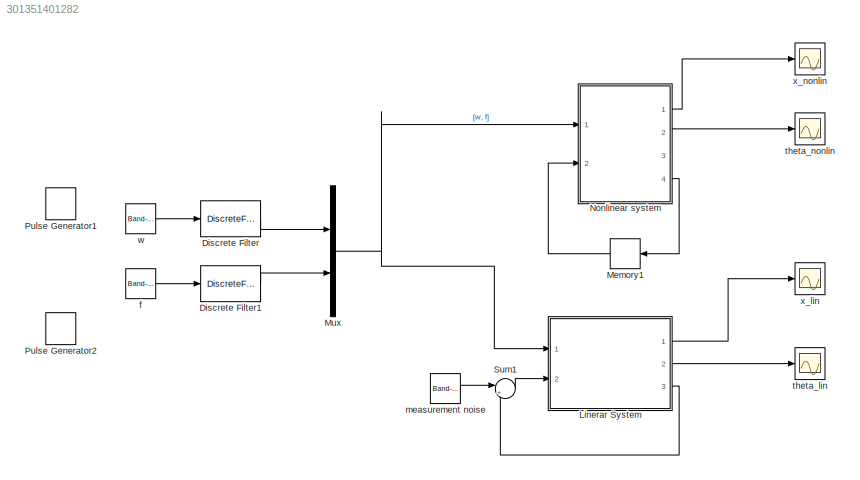
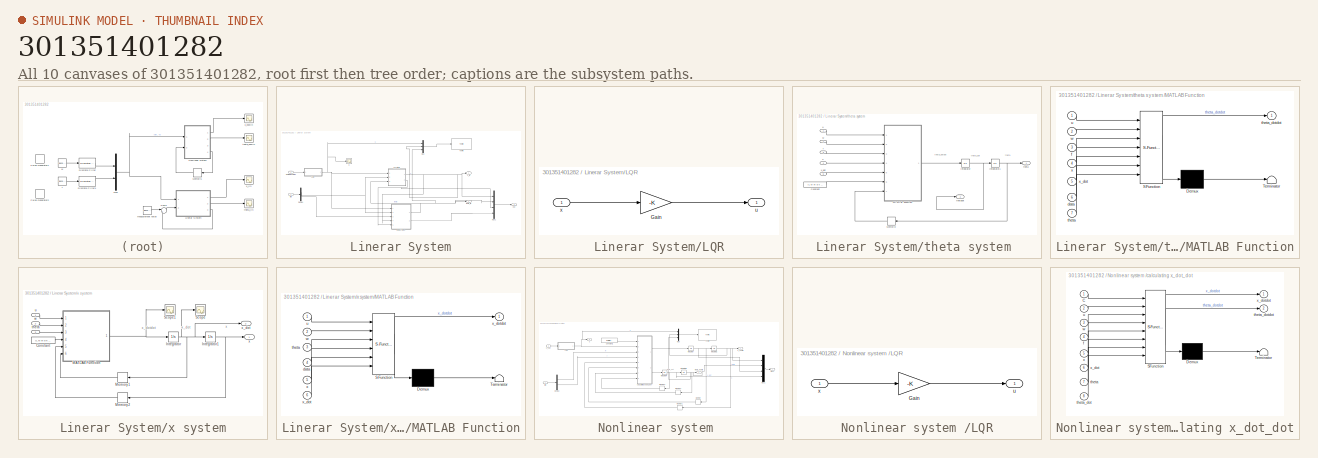
[diagram: thumbnail index - all 10 canvases of the model, root first then tree order]
MODEL slx_301351401282
KIND model
CONFIG AbsTol = auto
CONFIG EnableMultiTasking = off
CONFIG FixedStep = auto
CONFIG MaxStep = auto
CONFIG MinStep = auto
CONFIG RelTol = 1e-3
CONFIG SampleTimeConstraint = Unconstrained
CONFIG Solver = ode45
CONFIG SolverName = ode45
CONFIG StartTime = 0.0
CONFIG StopTime = 30
BLOCK [DiscreteFilter] Discrete Filter
  Denominator = [1 0.8]
  InputPortMap = u0
  Numerator = [0.64]
  Ports = [1, 1]
  SampleTime = 0.001
BLOCK [DiscreteFilter] Discrete Filter1
  Denominator = [1 0.8]
  InputPortMap = u0
  Numerator = [0.64]
  Ports = [1, 1]
  SampleTime = 0.001
BLOCK [SubSystem] Linerar System
  Ports = [2, 3]
  RequestExecContextInheritance = off
  Variant = off
BLOCK [Demux] Linerar System/Demux
  DisplayOption = bar
  Outputs = 2
  Ports = [1, 2]
BLOCK [Inport] Linerar System/Estimated states
  IconDisplay = Port number
  Port = 2
BLOCK [SubSystem] Linerar System/LQR
  Ports = [1, 1]
  RequestExecContextInheritance = off
  Variant = off
BLOCK [Gain] Linerar System/LQR/Gain
  Gain = -K
  Multiplication = Matrix(K*u)
  OutDataTypeStr = Inherit: Inherit via internal rule
  ParamDataTypeStr = Inherit: Inherit via internal rule
  SaturateOnIntegerOverflow = off
BLOCK [Outport] Linerar System/LQR/u
  IconDisplay = Port number
BLOCK [Inport] Linerar System/LQR/x
  IconDisplay = Port number
BLOCK [Mux] Linerar System/Mux
  DisplayOption = bar
  Inputs = 3
  Ports = [3, 1]
BLOCK [Mux] Linerar System/Mux1
  DisplayOption = bar
  Ports = [4, 1]
BLOCK [ToFile] Linerar System/To File
  Filename = expensive.mat
  MatrixName = data
  Ports = [1]
BLOCK [Inport] Linerar System/[w f]
  IconDisplay = Port number
BLOCK [Outport] Linerar System/out 
  IconDisplay = Port number
  Port = 3
BLOCK [SubSystem] Linerar System/theta system 
  Ports = [5, 2]
  RequestExecContextInheritance = off
  Variant = off
BLOCK [Constant] Linerar System/theta system /Constant
  SampleTime = 0.01
  Value = [L M m b k g]
  VectorParams1D = off
BLOCK [Integrator] Linerar System/theta system /Integrator
  Ports = [1, 1]
BLOCK [Integrator] Linerar System/theta system /Integrator1
  Ports = [1, 1]
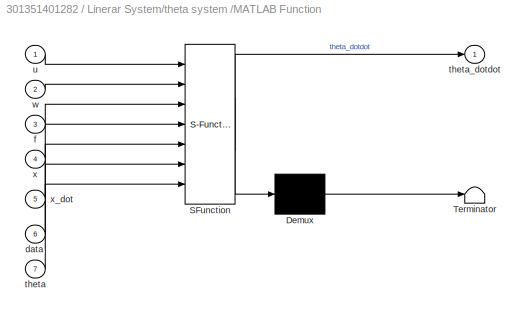
BLOCK [SubSystem] Linerar System/theta system /MATLAB Function
  ErrorFcn = Stateflow.Translate.translate
  PermitHierarchicalResolution = ExplicitOnly
  Ports = [7, 1]
  RequestExecContextInheritance = off
  SFBlockType = MATLAB Function
  TreatAsAtomicUnit = on
  Variant = off
BLOCK [Demux] Linerar System/theta system /MATLAB Function/ Demux 
  Outputs = 1
  Ports = [1, 1]
BLOCK [S-Function] Linerar System/theta system /MATLAB Function/ SFunction 
  EnableBusSupport = on
  FunctionName = sf_sfun
  PortCounts = [7 2]
  Ports = [7, 2]
  SFcnIsStateOwnerBlock = off
  SFunctionDeploymentMode = off
  Tag = Stateflow S-Function Model 3
BLOCK [Terminator] Linerar System/theta system /MATLAB Function/ Terminator 
BLOCK [Inport] Linerar System/theta system /MATLAB Function/data
  IconDisplay = Port number
  Port = 6
BLOCK [Inport] Linerar System/theta system /MATLAB Function/f
  IconDisplay = Port number
  Port = 3
BLOCK [Inport] Linerar System/theta system /MATLAB Function/theta
  IconDisplay = Port number
  Port = 7
BLOCK [Outport] Linerar System/theta system /MATLAB Function/theta_dotdot
  IconDisplay = Port number
BLOCK [Inport] Linerar System/theta system /MATLAB Function/u
  IconDisplay = Port number
BLOCK [Inport] Linerar System/theta system /MATLAB Function/w
  IconDisplay = Port number
  Port = 2
BLOCK [Inport] Linerar System/theta system /MATLAB Function/x
  IconDisplay = Port number
  Port = 4
BLOCK [Inport] Linerar System/theta system /MATLAB Function/x_dot
  IconDisplay = Port number
  Port = 5
BLOCK [Memory] Linerar System/theta system /Memory2
  X0 = theta_0
BLOCK [Inport] Linerar System/theta system /f
  IconDisplay = Port number
  Port = 3
BLOCK [Outport] Linerar System/theta system /theta
  IconDisplay = Port number
BLOCK [Outport] Linerar System/theta system /thetadot 
  IconDisplay = Port number
  Port = 2
BLOCK [Inport] Linerar System/theta system /u 
  IconDisplay = Port number
BLOCK [Inport] Linerar System/theta system /w
  IconDisplay = Port number
  Port = 2
BLOCK [Inport] Linerar System/theta system /x
  IconDisplay = Port number
  Port = 4
BLOCK [Inport] Linerar System/theta system /x_dot
  IconDisplay = Port number
  Port = 5
BLOCK [Outport] Linerar System/theta_lin
  IconDisplay = Port number
  Port = 2
BLOCK [Scope] Linerar System/u 
  NumInputPorts = 1
  Ports = [1]
  ScopeSpecificationString = Simulink.scopes.TimeScopeBlockCfg('CurrentConfiguration', extmgr.ConfigurationSet(extmgr.Configuration('Core','General UI',true),extmgr.Configuration('Core','Source UI',true),extmgr.Configuration('Sources','WiredSimulink',true,'DataLoggingVariableName','ScopeData1'),extmgr.Configuration('Visuals','Time Domain',true,'SerializedDisplays',{struct('MinYLimReal','-3.22879','MaxYLimReal','5.13733','YLab...<+1360ch>
BLOCK [SubSystem] Linerar System/x system
  Ports = [3, 2]
  RequestExecContextInheritance = off
  Variant = off
BLOCK [Constant] Linerar System/x system/Constant
  SampleTime = 0.01
  Value = [L M m b k g]
  VectorParams1D = off
BLOCK [Integrator] Linerar System/x system/Integrator
  Ports = [1, 1]
BLOCK [Integrator] Linerar System/x system/Integrator1
  Ports = [1, 1]
BLOCK [SubSystem] Linerar System/x system/MATLAB Function
  ErrorFcn = Stateflow.Translate.translate
  PermitHierarchicalResolution = ExplicitOnly
  Ports = [6, 1]
  RequestExecContextInheritance = off
  SFBlockType = MATLAB Function
  TreatAsAtomicUnit = on
  Variant = off
BLOCK [Demux] Linerar System/x system/MATLAB Function/ Demux 
  Outputs = 1
  Ports = [1, 1]
BLOCK [S-Function] Linerar System/x system/MATLAB Function/ SFunction 
  EnableBusSupport = on
  FunctionName = sf_sfun
  PortCounts = [6 2]
  Ports = [6, 2]
  SFcnIsStateOwnerBlock = off
  SFunctionDeploymentMode = off
  Tag = Stateflow S-Function Model 1
BLOCK [Terminator] Linerar System/x system/MATLAB Function/ Terminator 
BLOCK [Inport] Linerar System/x system/MATLAB Function/data
  IconDisplay = Port number
  Port = 4
BLOCK [Inport] Linerar System/x system/MATLAB Function/theta
  IconDisplay = Port number
  Port = 3
BLOCK [Inport] Linerar System/x system/MATLAB Function/u
  IconDisplay = Port number
BLOCK [Inport] Linerar System/x system/MATLAB Function/w
  IconDisplay = Port number
  Port = 2
BLOCK [Inport] Linerar System/x system/MATLAB Function/x
  IconDisplay = Port number
  Port = 5
BLOCK [Inport] Linerar System/x system/MATLAB Function/x_dot
  IconDisplay = Port number
  Port = 6
BLOCK [Outport] Linerar System/x system/MATLAB Function/x_dotdot
  IconDisplay = Port number
BLOCK [Memory] Linerar System/x system/Memory1
  X0 = x_dot0
BLOCK [Memory] Linerar System/x system/Memory2
  X0 = x_0
BLOCK [Scope] Linerar System/x system/Scope
  NumInputPorts = 1
  Ports = [1]
  ScopeSpecificationString = C++SS(StrPVP('Location','[188, 365, 512, 604]'),StrPVP('Open','off'),MxPVP('AxesTitles',24,'struct(''axes1'',''%<SignalLabel>'')'),StrPVP('ShowLegends','off'),StrPVP('ScrollMode','off'),StrPVP('LimitDataPoints','on'),StrPVP('DataFormat','Array'),StrPVP('Decimation','1'),StrPVP('BlockParamSampleInput','off'))
BLOCK [Scope] Linerar System/x system/Scope1
  NumInputPorts = 1
  Ports = [1]
  ScopeSpecificationString = C++SS(StrPVP('Location','[188, 365, 512, 604]'),StrPVP('Open','off'),MxPVP('AxesTitles',24,'struct(''axes1'',''%<SignalLabel>'')'),StrPVP('ShowLegends','off'),StrPVP('ScrollMode','off'),StrPVP('LimitDataPoints','on'),StrPVP('DataFormat','Array'),StrPVP('Decimation','1'),StrPVP('BlockParamSampleInput','off'))
BLOCK [Inport] Linerar System/x system/theta
  IconDisplay = Port number
  Port = 3
BLOCK [Inport] Linerar System/x system/u 
  IconDisplay = Port number
BLOCK [Inport] Linerar System/x system/w
  IconDisplay = Port number
  Port = 2
BLOCK [Outport] Linerar System/x system/x
  IconDisplay = Port number
BLOCK [Outport] Linerar System/x system/x_dot
  IconDisplay = Port number
  Port = 2
BLOCK [Outport] Linerar System/x_lin
  IconDisplay = Port number
BLOCK [Memory] Memory1
  X0 = [0 0 0 0 ]
BLOCK [Mux] Mux
  DisplayOption = bar
  Inputs = 2
  Ports = [2, 1]
BLOCK [SubSystem] Nonlinear system 
  Ports = [2, 4]
  RequestExecContextInheritance = off
  Variant = off
BLOCK [Constant] Nonlinear system /Constant1
  SampleTime = 0.001
  Value = [L, M, m, b, k, g]
BLOCK [Demux] Nonlinear system /Demux
  DisplayOption = bar
  Outputs = 2
  Ports = [1, 2]
BLOCK [Integrator] Nonlinear system /Integrator
  Ports = [1, 1]
BLOCK [Integrator] Nonlinear system /Integrator1
  Ports = [1, 1]
BLOCK [Integrator] Nonlinear system /Integrator4
  Ports = [1, 1]
BLOCK [Integrator] Nonlinear system /Integrator5
  Ports = [1, 1]
BLOCK [SubSystem] Nonlinear system /LQR
  Ports = [1, 1]
  RequestExecContextInheritance = off
  Variant = off
BLOCK [Gain] Nonlinear system /LQR/Gain
  Gain = -K
  Multiplication = Matrix(K*u)
  OutDataTypeStr = Inherit: Inherit via internal rule
  ParamDataTypeStr = Inherit: Inherit via internal rule
  SaturateOnIntegerOverflow = off
BLOCK [Outport] Nonlinear system /LQR/u
  IconDisplay = Port number
BLOCK [Inport] Nonlinear system /LQR/x
  IconDisplay = Port number
BLOCK [Memory] Nonlinear system /Memory
  X0 = x_dot0
BLOCK [Memory] Nonlinear system /Memory1
  X0 = x_0
BLOCK [Memory] Nonlinear system /Memory2
  X0 = theta_0
BLOCK [Memory] Nonlinear system /Memory3
  X0 = theta_dot0
BLOCK [Mux] Nonlinear system /Mux
  DisplayOption = bar
  Inputs = 3
  Ports = [3, 1]
BLOCK [Mux] Nonlinear system /Mux1
  DisplayOption = bar
  Ports = [4, 1]
BLOCK [ToFile] Nonlinear system /To File
  Filename = stability.mat
  MatrixName = data
  Ports = [1]
BLOCK [Inport] Nonlinear system /[w f]
  IconDisplay = Port number
BLOCK [Outport] Nonlinear system /allout 
  IconDisplay = Port number
  Port = 4
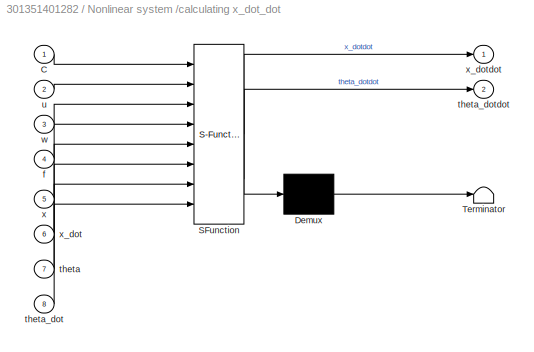
BLOCK [SubSystem] Nonlinear system /calculating x_dot_dot
  ErrorFcn = Stateflow.Translate.translate
  PermitHierarchicalResolution = ExplicitOnly
  Ports = [8, 2]
  RequestExecContextInheritance = off
  SFBlockType = MATLAB Function
  TreatAsAtomicUnit = on
  Variant = off
BLOCK [Demux] Nonlinear system /calculating x_dot_dot/ Demux 
  Outputs = 1
  Ports = [1, 1]
BLOCK [S-Function] Nonlinear system /calculating x_dot_dot/ SFunction 
  EnableBusSupport = on
  FunctionName = sf_sfun
  PortCounts = [8 3]
  Ports = [8, 3]
  SFcnIsStateOwnerBlock = off
  SFunctionDeploymentMode = off
  Tag = Stateflow S-Function Model 4
BLOCK [Terminator] Nonlinear system /calculating x_dot_dot/ Terminator 
BLOCK [Inport] Nonlinear system /calculating x_dot_dot/C
  IconDisplay = Port number
BLOCK [Inport] Nonlinear system /calculating x_dot_dot/f
  IconDisplay = Port number
  Port = 4
BLOCK [Inport] Nonlinear system /calculating x_dot_dot/theta
  IconDisplay = Port number
  Port = 7
BLOCK [Inport] Nonlinear system /calculating x_dot_dot/theta_dot
  IconDisplay = Port number
  Port = 8
BLOCK [Outport] Nonlinear system /calculating x_dot_dot/theta_dotdot
  IconDisplay = Port number
  Port = 2
BLOCK [Inport] Nonlinear system /calculating x_dot_dot/u
  IconDisplay = Port number
  Port = 2
BLOCK [Inport] Nonlinear system /calculating x_dot_dot/w
  IconDisplay = Port number
  Port = 3
BLOCK [Inport] Nonlinear system /calculating x_dot_dot/x
  IconDisplay = Port number
  Port = 5
BLOCK [Inport] Nonlinear system /calculating x_dot_dot/x_dot
  IconDisplay = Port number
  Port = 6
BLOCK [Outport] Nonlinear system /calculating x_dot_dot/x_dotdot
  IconDisplay = Port number
BLOCK [Outport] Nonlinear system /theta_nonlin
  IconDisplay = Port number
  Port = 2
BLOCK [Outport] Nonlinear system /u
  IconDisplay = Port number
  Port = 3
BLOCK [Inport] Nonlinear system /x_hat
  IconDisplay = Port number
  Port = 2
BLOCK [Outport] Nonlinear system /x_nonlin
  IconDisplay = Port number
BLOCK [DiscretePulseGenerator] Pulse Generator1
  Commented = on
  Period = 100
  PhaseDelay = 3
  Ports = [0, 1]
  PulseType = Time based
BLOCK [DiscretePulseGenerator] Pulse Generator2
  Commented = on
  Period = 100
  PhaseDelay = 3
  Ports = [0, 1]
  PulseType = Time based
BLOCK [Sum] Sum1
  IconShape = round
  InputSameDT = off
  Inputs = |++
  OutDataTypeStr = Inherit: Inherit via internal rule
  Ports = [2, 1]
  SaturateOnIntegerOverflow = off
BLOCK [Reference] f   REF=simulink/Sources/Band-Limited
White Noise
  Ports = [0, 1]
  SourceBlock = simulink/Sources/Band-Limited\nWhite Noise
  SourceType = Band-Limited White Noise.
BLOCK [Reference] measurement noise  REF=simulink/Sources/Band-Limited
White Noise
  Ports = [0, 1]
  SourceBlock = simulink/Sources/Band-Limited\nWhite Noise
  SourceType = Band-Limited White Noise.
BLOCK [Scope] theta_lin
  NumInputPorts = 1
  Ports = [1]
  ScopeSpecificationString = Simulink.scopes.TimeScopeBlockCfg('CurrentConfiguration', extmgr.ConfigurationSet(extmgr.Configuration('Core','General UI',true),extmgr.Configuration('Core','Source UI',true),extmgr.Configuration('Sources','WiredSimulink',true,'DataLoggingVariableName','ScopeData2','DataLoggingSaveFormat','StructureWithTime','DataLoggingDecimation','1','DataLoggingDecimateData',true),extmgr.Configuration('Visuals'...<+2881ch>
BLOCK [Scope] theta_nonlin
  NumInputPorts = 1
  Ports = [1]
  ScopeSpecificationString = C++SS(StrPVP('Location','[685, 57, 1366, 726]'),StrPVP('Open','off'),MxPVP('AxesTitles',24,'struct(''axes1'',''%<SignalLabel>'')'),MxPVP('ScopeGraphics',28,'struct(''FigureColor'',''[0.5 0.5 0.5]'',''AxesColor'',''[0 0 0]'',''AxesTickColor'',''[1 1 1]'',''LineColors'',''[1 1 0;1 0 1;0 1 1;1 0 0;0 1 0;0 0 1]'',''LineStyles'',''-|-|-|-|-|-'',''LineWidths'',''[0.5 0.5 0.5 0.5 0.5 0.5]'',''MarkerStyle...<+339ch>
BLOCK [Reference] w   REF=simulink/Sources/Band-Limited
White Noise
  Ports = [0, 1]
  SourceBlock = simulink/Sources/Band-Limited\nWhite Noise
  SourceType = Band-Limited White Noise.
BLOCK [Scope] x_lin
  NumInputPorts = 1
  Ports = [1]
  ScopeSpecificationString = C++SS(StrPVP('Location','[2, 57, 683, 726]'),StrPVP('Open','off'),StrPVP('ZoomMode','yonly'),MxPVP('AxesTitles',24,'struct(''axes1'',''%<SignalLabel>'')'),MxPVP('ScopeGraphics',28,'struct(''FigureColor'',''[0.5 0.5 0.5]'',''AxesColor'',''[0 0 0]'',''AxesTickColor'',''[1 1 1]'',''LineColors'',''[1 1 0;1 0 1;0 1 1;1 0 0;0 1 0;0 0 1]'',''LineStyles'',''-|-|-|-|-|-'',''LineWidths'',''[0.5 0.5 0.5 0.5 ...<+331ch>
BLOCK [Scope] x_nonlin
  NumInputPorts = 1
  Ports = [1]
  ScopeSpecificationString = C++SS(StrPVP('Location','[685, 57, 1366, 726]'),StrPVP('Open','off'),MxPVP('AxesTitles',24,'struct(''axes1'',''%<SignalLabel>'')'),MxPVP('ScopeGraphics',28,'struct(''FigureColor'',''[0.5 0.5 0.5]'',''AxesColor'',''[0 0 0]'',''AxesTickColor'',''[1 1 1]'',''LineColors'',''[1 1 0;1 0 1;0 1 1;1 0 0;0 1 0;0 0 1]'',''LineStyles'',''-|-|-|-|-|-'',''LineWidths'',''[0.5 0.5 0.5 0.5 0.5 0.5]'',''MarkerStyle...<+307ch>
ANNOTATION Linerar System/theta system : theta
ANNOTATION Linerar System/theta system : theta_dot
ANNOTATION Linerar System/theta system : theta_dotdot
ANNOTATION Linerar System/x system: x
ANNOTATION Linerar System/x system: x_dot
ANNOTATION Linerar System/x system: x_dotdot
ANNOTATION Nonlinear system : theta_dot
LINE Discrete Filter1:1 -> Mux:2
LINE Discrete Filter:1 -> Mux:1
NET Linerar System/Demux:1 -> Linerar System/theta system :2, Linerar System/x system:2
LINE Linerar System/Demux:2 -> Linerar System/theta system :3
LINE Linerar System/Estimated states:1 -> Linerar System/LQR:1
LINE Linerar System/LQR/Gain:1 -> Linerar System/LQR/u:1
LINE Linerar System/LQR/x:1 -> Linerar System/LQR/Gain:1
NET Linerar System/LQR:1 -> Linerar System/Mux:1, Linerar System/theta system :1, Linerar System/u :1, Linerar System/x system:1
LINE Linerar System/Mux1:1 -> Linerar System/out :1
LINE Linerar System/Mux:1 -> Linerar System/To File:1
LINE Linerar System/[w f]:1 -> Linerar System/Demux:1
LINE Linerar System/theta system /Constant:1 -> Linerar System/theta system /MATLAB Function:6
NET Linerar System/theta system /Integrator1:1 -> Linerar System/theta system /Memory2:1, Linerar System/theta system /theta:1
NET Linerar System/theta system /Integrator:1 -> Linerar System/theta system /Integrator1:1, Linerar System/theta system /thetadot :1
LINE Linerar System/theta system /MATLAB Function:1 -> Linerar System/theta system /Integrator:1
LINE Linerar System/theta system /Memory2:1 -> Linerar System/theta system /MATLAB Function:7
LINE Linerar System/theta system /f:1 -> Linerar System/theta system /MATLAB Function:3
LINE Linerar System/theta system /u :1 -> Linerar System/theta system /MATLAB Function:1
LINE Linerar System/theta system /w:1 -> Linerar System/theta system /MATLAB Function:2
LINE Linerar System/theta system /x:1 -> Linerar System/theta system /MATLAB Function:4
LINE Linerar System/theta system /x_dot:1 -> Linerar System/theta system /MATLAB Function:5
NET Linerar System/theta system :1 -> Linerar System/Mux1:2, Linerar System/Mux:3, Linerar System/theta_lin:1, Linerar System/x system:3
LINE Linerar System/theta system :2 -> Linerar System/Mux1:4
LINE Linerar System/x system/Constant:1 -> Linerar System/x system/MATLAB Function:4
NET Linerar System/x system/Integrator1:1 -> Linerar System/x system/Memory2:1, Linerar System/x system/x:1
NET Linerar System/x system/Integrator:1 -> Linerar System/x system/Integrator1:1, Linerar System/x system/Memory1:1, Linerar System/x system/Scope:1, Linerar System/x system/x_dot:1
NET Linerar System/x system/MATLAB Function:1 -> Linerar System/x system/Integrator:1, Linerar System/x system/Scope1:1
LINE Linerar System/x system/Memory1:1 -> Linerar System/x system/MATLAB Function:6
LINE Linerar System/x system/Memory2:1 -> Linerar System/x system/MATLAB Function:5
LINE Linerar System/x system/theta:1 -> Linerar System/x system/MATLAB Function:3
LINE Linerar System/x system/u :1 -> Linerar System/x system/MATLAB Function:1
LINE Linerar System/x system/w:1 -> Linerar System/x system/MATLAB Function:2
NET Linerar System/x system:1 -> Linerar System/Mux1:1, Linerar System/Mux:2, Linerar System/theta system :4, Linerar System/x_lin:1
NET Linerar System/x system:2 -> Linerar System/Mux1:3, Linerar System/theta system :5
LINE Linerar System:1 -> x_lin:1
LINE Linerar System:2 -> theta_lin:1
LINE Linerar System:3 -> Sum1:2
LINE Memory1:1 -> Nonlinear system :2
NET Mux:1 -> Linerar System:1, Nonlinear system :1
LINE Nonlinear system /Constant1:1 -> Nonlinear system /calculating x_dot_dot:1
LINE Nonlinear system /Demux:1 -> Nonlinear system /calculating x_dot_dot:3
LINE Nonlinear system /Demux:2 -> Nonlinear system /calculating x_dot_dot:4
NET Nonlinear system /Integrator1:1 -> Nonlinear system /Memory1:1, Nonlinear system /Mux1:1, Nonlinear system /Mux:2, Nonlinear system /x_nonlin:1
NET Nonlinear system /Integrator4:1 -> Nonlinear system /Integrator5:1, Nonlinear system /Memory3:1, Nonlinear system /Mux1:4
NET Nonlinear system /Integrator5:1 -> Nonlinear system /Memory2:1, Nonlinear system /Mux1:2, Nonlinear system /Mux:3, Nonlinear system /theta_nonlin:1
NET Nonlinear system /Integrator:1 -> Nonlinear system /Integrator1:1, Nonlinear system /Memory:1, Nonlinear system /Mux1:3
LINE Nonlinear system /LQR/Gain:1 -> Nonlinear system /LQR/u:1
LINE Nonlinear system /LQR/x:1 -> Nonlinear system /LQR/Gain:1
NET Nonlinear system /LQR:1 -> Nonlinear system /Mux:1, Nonlinear system /calculating x_dot_dot:2, Nonlinear system /u:1
LINE Nonlinear system /Memory1:1 -> Nonlinear system /calculating x_dot_dot:5
LINE Nonlinear system /Memory2:1 -> Nonlinear system /calculating x_dot_dot:7
LINE Nonlinear system /Memory3:1 -> Nonlinear system /calculating x_dot_dot:8
LINE Nonlinear system /Memory:1 -> Nonlinear system /calculating x_dot_dot:6
LINE Nonlinear system /Mux1:1 -> Nonlinear system /allout :1
LINE Nonlinear system /Mux:1 -> Nonlinear system /To File:1
LINE Nonlinear system /[w f]:1 -> Nonlinear system /Demux:1
LINE Nonlinear system /calculating x_dot_dot:1 -> Nonlinear system /Integrator:1
LINE Nonlinear system /calculating x_dot_dot:2 -> Nonlinear system /Integrator4:1
LINE Nonlinear system /x_hat:1 -> Nonlinear system /LQR:1
LINE Nonlinear system :1 -> x_nonlin:1
LINE Nonlinear system :2 -> theta_nonlin:1
LINE Nonlinear system :4 -> Memory1:1
LINE Sum1:1 -> Linerar System:2
LINE f :1 -> Discrete Filter1:1
LINE measurement noise:1 -> Sum1:1
LINE w :1 -> Discrete Filter:1
note: NET lines group one-source signal fan-out (src -> all destinations, sorted); 1:1 wires keep LINE
CHART Linerar System/x system/MATLAB Function states=1 transitions=1
  STATE_LABEL 'eML_blk_kernel()'
  STATE_LABEL 'SCRIPT:\nfunction x_dotdot  = fcn(u, w, theta, data, x, x_dot)\nL = data(1);\nM = data(2);\nm = data(3);\nb = data(4);\nk = data(5);\ng = data(6);\n\n% theta = theta * 180 / pi;\n\nx_dotdot=(u - w - m * g * theta - b * x_dot - k * x) / M;\n\n\nend'
CHART Linerar System/theta system
/MATLAB Function states=1 transitions=1
  STATE_LABEL 'eML_blk_kernel()'
  STATE_LABEL 'SCRIPT:\nfunction theta_dotdot  = fcn(u, w, f, x, x_dot, data, theta)\nL = data(1);\nM = data(2);\nm = data(3);\nb = data(4);\nk = data(5);\ng = data(6);\n\n% theta = theta * 180 / pi;\n\ntheta_dotdot=(-u + w + (m + M) * g * theta - (M / m) * f + b * x_dot + k * x)/(L * M);\n\nend'
CHART Nonlinear system
/calculating x_dot_dot states=1 transitions=1
  STATE_LABEL 'eML_blk_kernel()'
  STATE_LABEL 'SCRIPT:\nfunction [x_dotdot, theta_dotdot]= fcn(C,u, w, f, x, x_dot, theta, theta_dot)\n%extracting the know parameters from vector C\nL = C(1); \nM= C(2); \nm=C(3); \nb = C(4); \nk = C(5); \ng = C(6);\n\n%calculating x_dot_dot\n x_dotdot = (u - f - w + f*cos(theta)^2 ...\n            + m*L*theta_dot^2*sin(theta) ...\n            -m*g*sin(theta)*cos(theta)...\n            -b*x_dot -k*x )/(M + m*sin(theta)^2); \n...<+302ch>'
